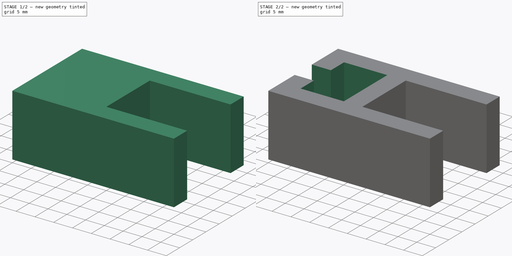
[diagram: build sequence overview — one tinted view per stage of 2, left to right]
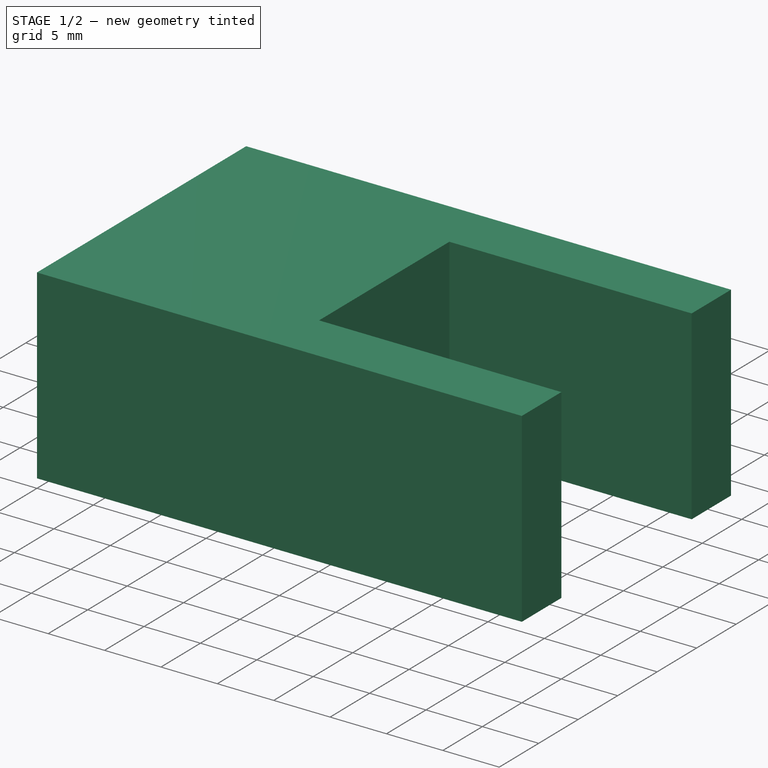
[diagram: stage 1 of 2 — iso view after this stage's code; geometry added in this stage tinted green]
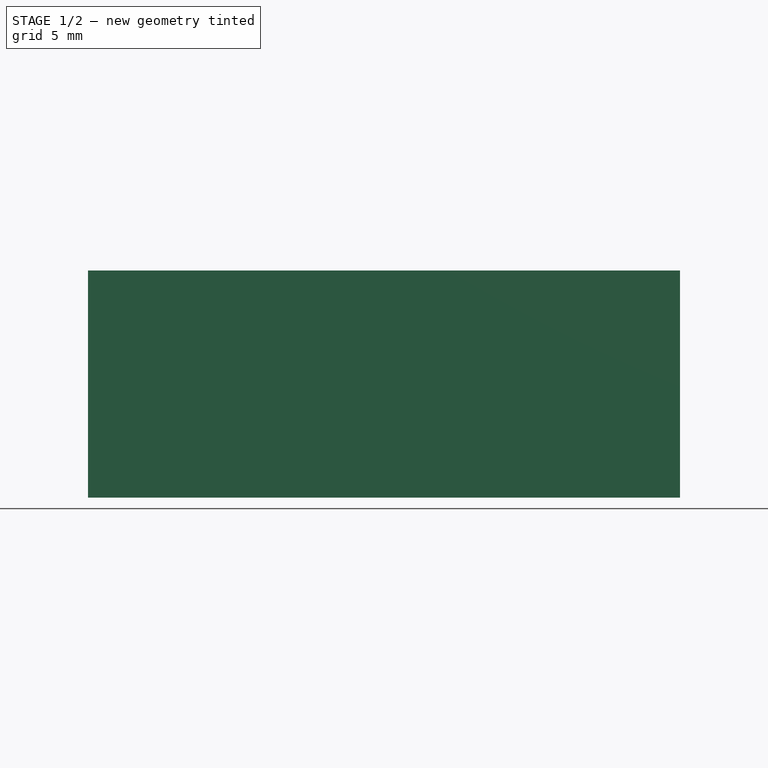
[diagram: stage 1 of 2 — front view after this stage's code; geometry added in this stage tinted green]
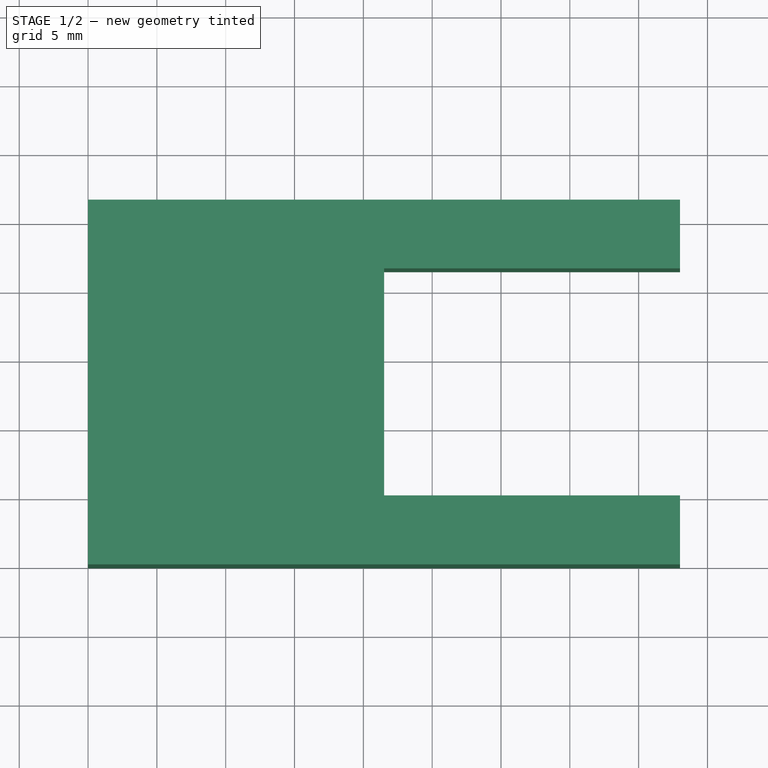
[diagram: stage 1 of 2 — top view after this stage's code; geometry added in this stage tinted green]
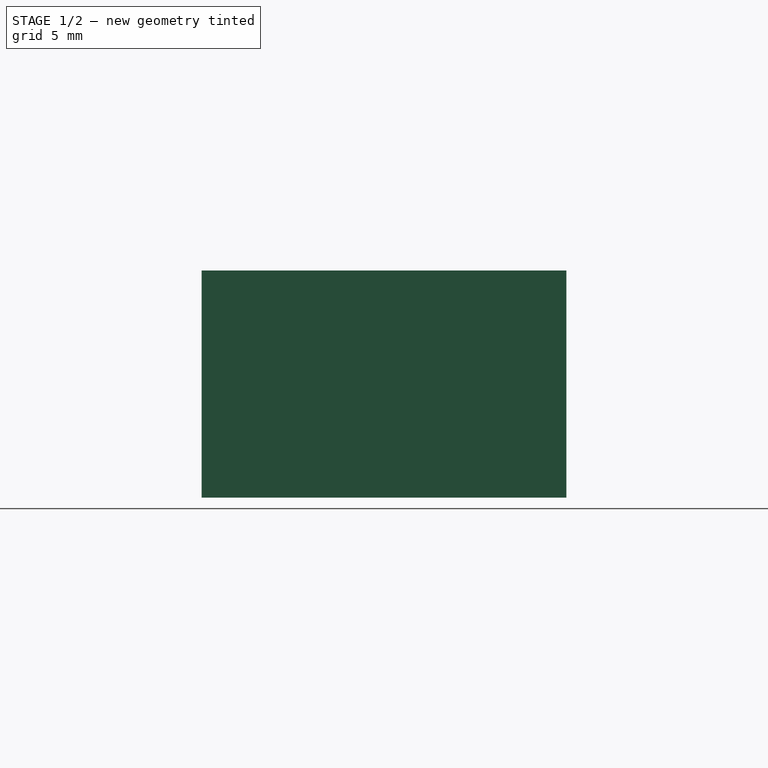
[diagram: stage 1 of 2 — right view after this stage's code; geometry added in this stage tinted green]
FCSTD DOCUMENT  (FreeCAD 1.0R39319 (Git))
Label: CableClip
License: All rights reserved
LicenseURL: https://en.wikipedia.org/wiki/All_rights_reserved
objects: Sketcher::SketchObject×4, PartDesign::Pocket×3, PartDesign::Pad×1, PartDesign::Body×1
note: 21 computed .brp shape members not serialized (recipe doc carries the construction recipe); baked Part::Feature solids carry a one-line shape summary decoded from their .brp

FEATURE [Sketcher::SketchObject] Sketch
  ArcFitTolerance = 1e-06
  AttachmentSupport = -> [XY_Plane]
  FullyConstrained = true
  MakeInternals = false
  MapMode = 5
  sketch-geometry (4):
    g0: LineSegment StartX=0 StartY=0 StartZ=0 EndX=43 EndY=0 EndZ=0
    g1: LineSegment StartX=43 StartY=0 StartZ=0 EndX=43 EndY=26.5 EndZ=0
    g2: LineSegment StartX=43 StartY=26.5 StartZ=0 EndX=0 EndY=26.5 EndZ=0
    g3: LineSegment StartX=0 StartY=26.5 StartZ=0 EndX=0 EndY=0 EndZ=0
  constraints (11):
    c: Coincident(g0,g1)
    c: Coincident(g1,g2)
    c: Coincident(g2,g3)
    c: Coincident(g3,g0)
    c: Horizontal(g0)
    c: Horizontal(g2)
    c: Vertical(g1)
    c: Vertical(g3)
    c: Distance(g1,g3) = 43
    c: Distance(g0,g2) = 26.5
    c: Coincident(g0,g-1)
FEATURE [PartDesign::Pad] Pad
  Direction = (0,0,1)
  Length = 16.5
  Length2 = 10
  Profile = -> Sketch
  ReferenceAxis = -> Sketch [N_Axis]
  Refine = true
  Suppressed = false
  Type = 0
FEATURE [Sketcher::SketchObject] Sketch001
  ArcFitTolerance = 1e-06
  AttachmentSupport = -> [Pad]
  FullyConstrained = false
  MakeInternals = false
  MapMode = 5
  Placement = pos=(0,0,16.5) rot=(0,0,1;0rad)
  sketch-geometry (4):
    g0: LineSegment StartX=21.5109 StartY=5.01102 StartZ=0 EndX=43.0109 EndY=5.01102 EndZ=0
    g1: LineSegment StartX=43.0109 StartY=5.01102 StartZ=0 EndX=43.0109 EndY=21.511 EndZ=0
    g2: LineSegment StartX=43.0109 StartY=21.511 StartZ=0 EndX=21.5109 EndY=21.511 EndZ=0
    g3: LineSegment StartX=21.5109 StartY=21.511 StartZ=0 EndX=21.5109 EndY=5.01102 EndZ=0
  constraints (10):
    c: Coincident(g0,g1)
    c: Coincident(g1,g2)
    c: Coincident(g2,g3)
    c: Coincident(g3,g0)
    c: Horizontal(g0)
    c: Horizontal(g2)
    c: Vertical(g1)
    c: Vertical(g3)
    c: Distance(g1,g3) = 21.5
    c: Distance(g0,g2) = 16.5
FEATURE [PartDesign::Pocket] Pocket
  BaseFeature = -> Pad
  Direction = (0,0,-1)
  Length = 16.5
  Length2 = 5
  Profile = -> Sketch001
  ReferenceAxis = -> Sketch001 [N_Axis]
  Refine = true
  Suppressed = false
  Type = 0
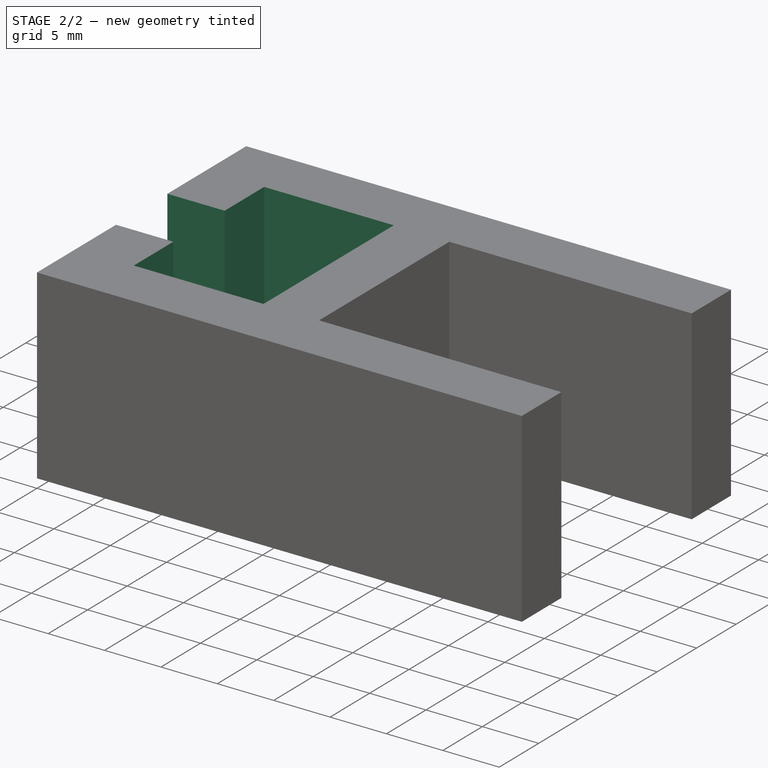
[diagram: stage 2 of 2 — iso view after this stage's code; geometry added in this stage tinted green]
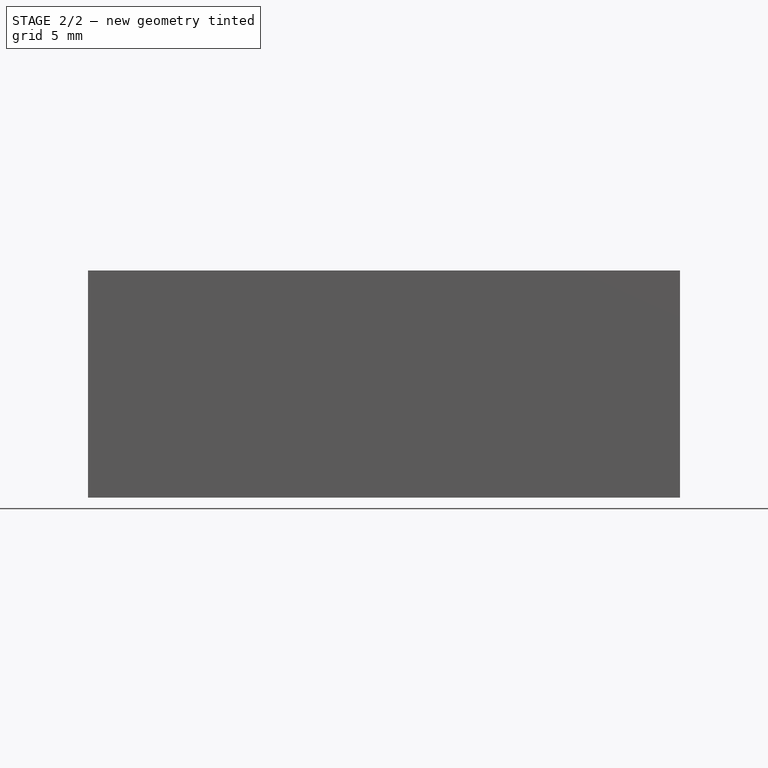
[diagram: stage 2 of 2 — front view after this stage's code; geometry added in this stage tinted green]
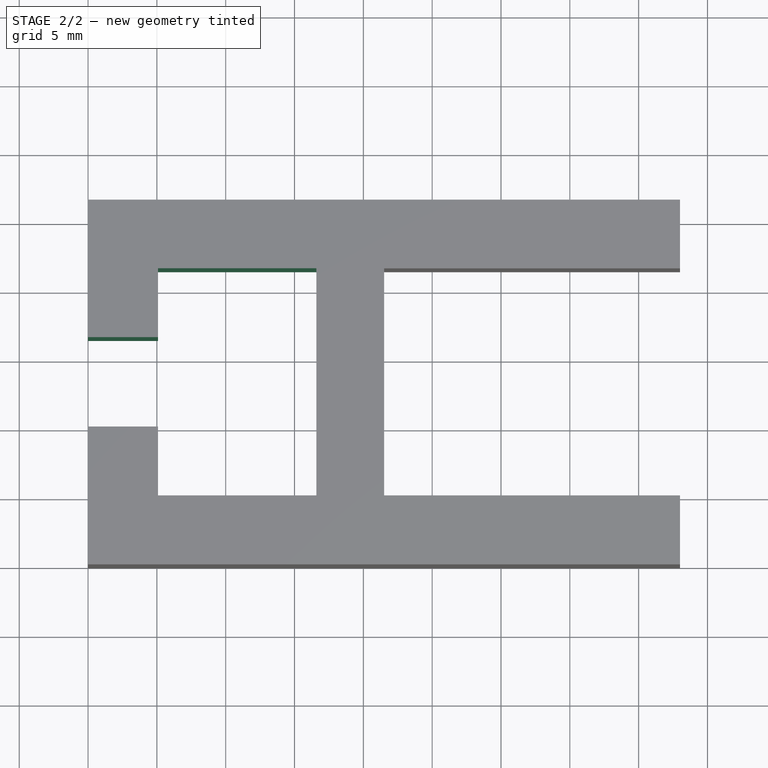
[diagram: stage 2 of 2 — top view after this stage's code; geometry added in this stage tinted green]
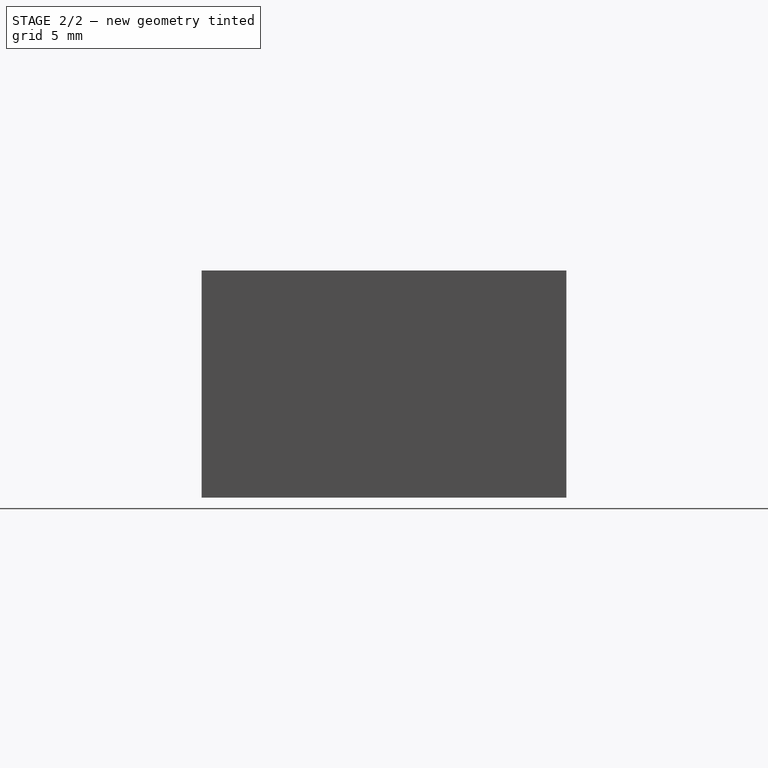
[diagram: stage 2 of 2 — right view after this stage's code; geometry added in this stage tinted green]
FEATURE [Sketcher::SketchObject] Sketch002
  ArcFitTolerance = 1e-06
  AttachmentSupport = -> [Pocket]
  FullyConstrained = false
  MakeInternals = false
  MapMode = 5
  Placement = pos=(0,0,16.5) rot=(0,0,1;0rad)
  sketch-geometry (4):
    g0: LineSegment StartX=5.08305 StartY=5.01328 StartZ=0 EndX=16.5831 EndY=5.01328 EndZ=0
    g1: LineSegment StartX=16.5831 StartY=5.01328 StartZ=0 EndX=16.5831 EndY=21.5133 EndZ=0
    g2: LineSegment StartX=16.5831 StartY=21.5133 StartZ=0 EndX=5.08305 EndY=21.5133 EndZ=0
    g3: LineSegment StartX=5.08305 StartY=21.5133 StartZ=0 EndX=5.08305 EndY=5.01328 EndZ=0
  constraints (10):
    c: Coincident(g0,g1)
    c: Coincident(g1,g2)
    c: Coincident(g2,g3)
    c: Coincident(g3,g0)
    c: Horizontal(g0)
    c: Horizontal(g2)
    c: Vertical(g1)
    c: Vertical(g3)
    c: Distance(g1,g3) = 11.5
    c: Distance(g0,g2) = 16.5
FEATURE [PartDesign::Pocket] Pocket001
  BaseFeature = -> Pocket
  Direction = (0,0,-1)
  Length = 16.5
  Length2 = 5
  Profile = -> Sketch002
  ReferenceAxis = -> Sketch002 [N_Axis]
  Refine = true
  Suppressed = false
  Type = 0
FEATURE [Sketcher::SketchObject] Sketch003
  ArcFitTolerance = 1e-06
  AttachmentSupport = -> [Pocket001]
  FullyConstrained = false
  MakeInternals = false
  MapMode = 5
  Placement = pos=(0,0,16.5) rot=(0,0,1;0rad)
  sketch-geometry (4):
    g0: LineSegment StartX=0 StartY=10.0144 StartZ=0 EndX=6 EndY=10.0144 EndZ=0
    g1: LineSegment StartX=6 StartY=10.0144 StartZ=0 EndX=6 EndY=16.5144 EndZ=0
    g2: LineSegment StartX=6 StartY=16.5144 StartZ=0 EndX=0 EndY=16.5144 EndZ=0
    g3: LineSegment StartX=0 StartY=16.5144 StartZ=0 EndX=0 EndY=10.0144 EndZ=0
  constraints (11):
    c: Coincident(g0,g1)
    c: Coincident(g1,g2)
    c: Coincident(g2,g3)
    c: Coincident(g3,g0)
    c: Horizontal(g0)
    c: Horizontal(g2)
    c: Vertical(g1)
    c: Vertical(g3)
    c: Distance(g1,g3) = 6
    c: Distance(g0,g2) = 6.5
    c: PointOnObject(g0,g-2)
FEATURE [PartDesign::Pocket] Pocket002
  BaseFeature = -> Pocket001
  Direction = (0,0,-1)
  Length = 17
  Length2 = 5
  Profile = -> Sketch003
  ReferenceAxis = -> Sketch003 [N_Axis]
  Refine = true
  Suppressed = false
  Type = 0
FEATURE [PartDesign::Body] Body
  AllowCompound = false
  Group = -> [Sketch,Pad,Sketch001,Pocket,Sketch002,Pocket001,Sketch003,Pocket002]
  Origin = -> Origin
  Tip = -> Pocket002
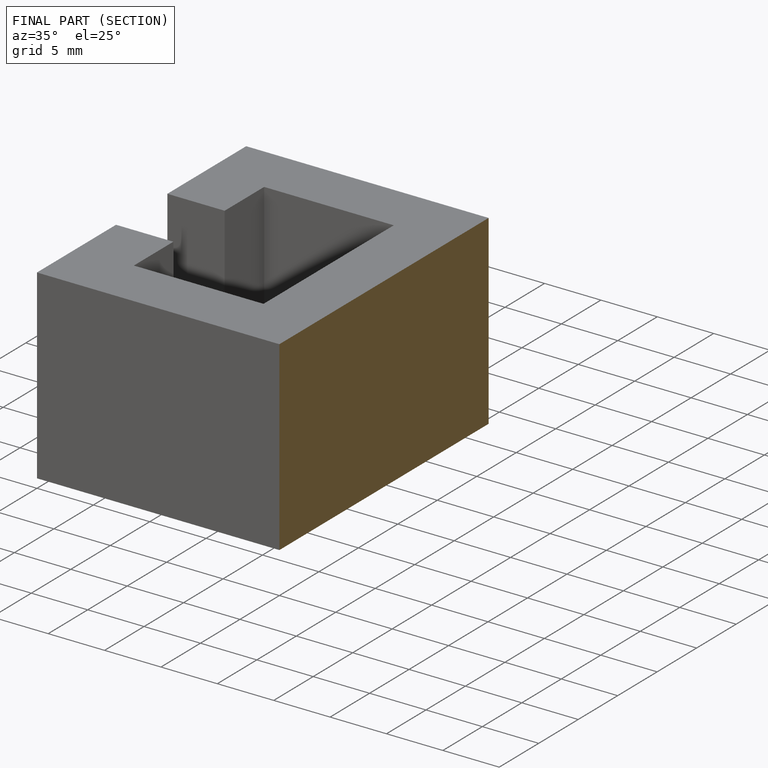
[diagram: finished part — half-section view (interior)]
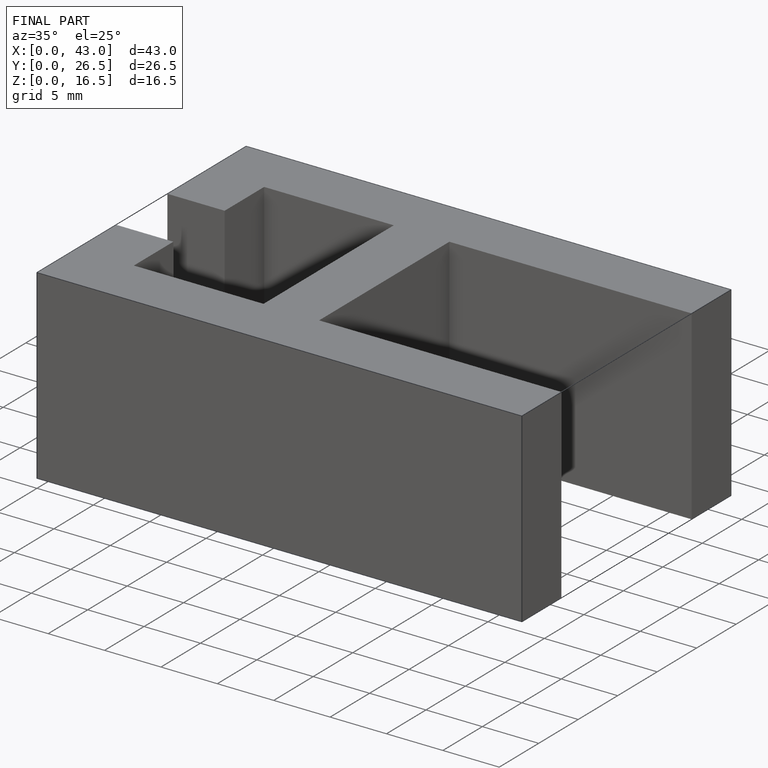
[diagram: finished part — iso view with bounding-box wireframe]
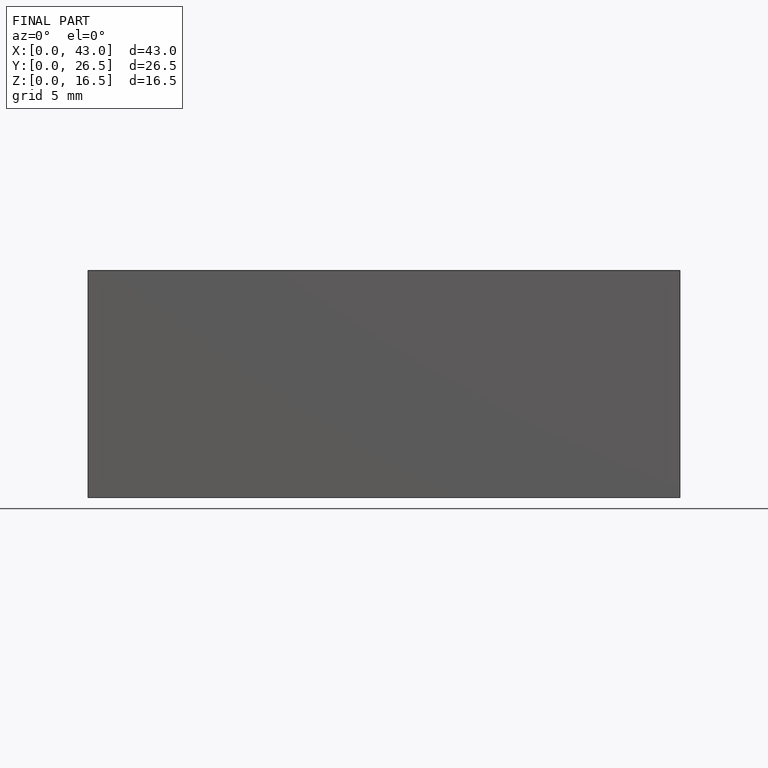
[diagram: finished part — front view with bounding-box wireframe]
